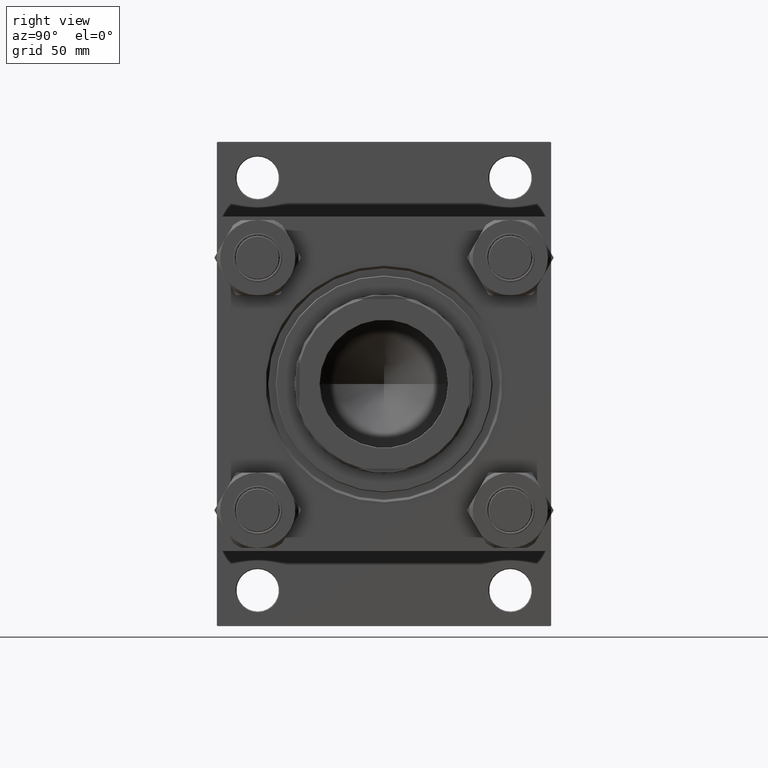
[diagram: clean part render]
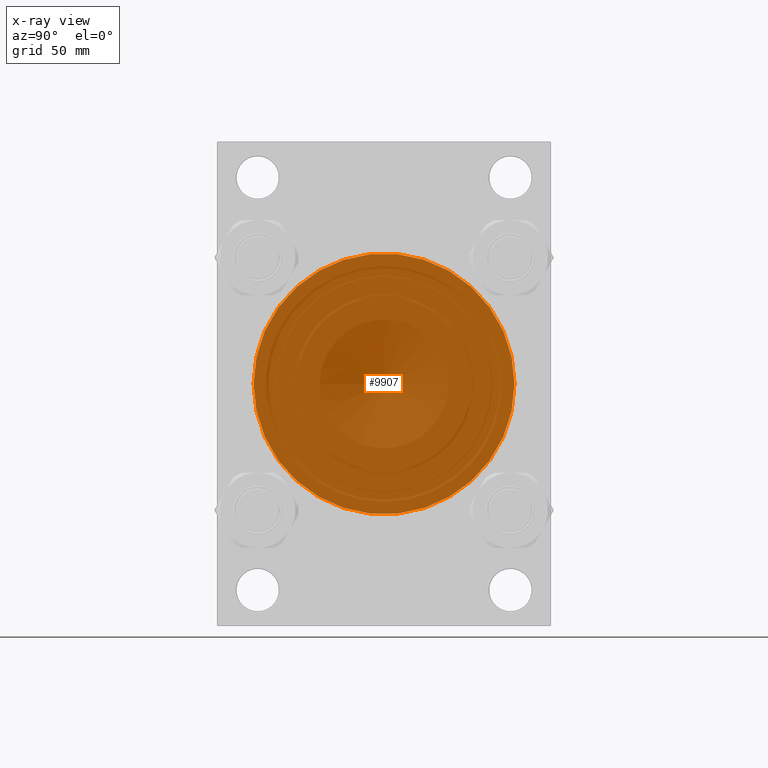
[diagram: x-ray — body ghosted, one internal face saturated and labeled with its STEP entity id]
A machine part, right view, then the same camera in x-ray: the body is ghosted and one INTERNAL B-rep face — a face not visible from any outside direction — is saturated and labeled: STEP entity #9907.
In plain terms, the highlighted planar face has unit normal (1, 0, 0).
Its self-contained STEP definition (entity closure, byte-faithful):
#3303 = VERTEX_POINT ( 'NONE', #20413 ) ;
#5720 = PLANE ( 'NONE',  #14505 ) ;
#7819 = AXIS2_PLACEMENT_3D ( 'NONE', #26116, #49619, #42187 ) ;
#8778 = FACE_OUTER_BOUND ( 'NONE', #29597, .T. ) ;
#9029 = DIRECTION ( 'NONE',  ( 0.000000000000000000, 0.000000000000000000, 1.000000000000000000 ) ) ;
#9907 = ADVANCED_FACE ( 'NONE', ( #8778 ), #5720, .F. ) ;
#9940 = CIRCLE ( 'NONE', #36847, 80.00000000000000000 ) ;
#14505 = AXIS2_PLACEMENT_3D ( 'NONE', #16682, #9029, #24855 ) ;
#16682 = CARTESIAN_POINT ( 'NONE',  ( 0.000000000000000000, 0.000000000000000000, 0.000000000000000000 ) ) ;
#19730 = EDGE_CURVE ( 'NONE', #36982, #3303, #47750, .T. ) ;
#20413 = CARTESIAN_POINT ( 'NONE',  ( -80.00000000000000000, 0.000000000000000000, 0.000000000000000000 ) ) ;
#24855 = DIRECTION ( 'NONE',  ( 1.000000000000000000, 0.000000000000000000, -0.000000000000000000 ) ) ;
#25775 = DIRECTION ( 'NONE',  ( 0.000000000000000000, 0.000000000000000000, 1.000000000000000000 ) ) ;
#26116 = CARTESIAN_POINT ( 'NONE',  ( 0.000000000000000000, 0.000000000000000000, 0.000000000000000000 ) ) ;
#29597 = EDGE_LOOP ( 'NONE', ( #40416, #42506 ) ) ;
#36847 = AXIS2_PLACEMENT_3D ( 'NONE', #45186, #25775, #41362 ) ;
#36982 = VERTEX_POINT ( 'NONE', #44079 ) ;
#40416 = ORIENTED_EDGE ( 'NONE', *, *, #43296, .F. ) ;
#41362 = DIRECTION ( 'NONE',  ( 1.000000000000000000, 0.000000000000000000, 0.000000000000000000 ) ) ;
#42187 = DIRECTION ( 'NONE',  ( 1.000000000000000000, 0.000000000000000000, 0.000000000000000000 ) ) ;
#42506 = ORIENTED_EDGE ( 'NONE', *, *, #19730, .F. ) ;
#43296 = EDGE_CURVE ( 'NONE', #3303, #36982, #9940, .T. ) ;
#44079 = CARTESIAN_POINT ( 'NONE',  ( 80.00000000000000000, 9.797174393178826052E-15, 0.000000000000000000 ) ) ;
#45186 = CARTESIAN_POINT ( 'NONE',  ( 0.000000000000000000, 0.000000000000000000, 0.000000000000000000 ) ) ;
#47750 = CIRCLE ( 'NONE', #7819, 80.00000000000000000 ) ;
#49619 = DIRECTION ( 'NONE',  ( 0.000000000000000000, 0.000000000000000000, 1.000000000000000000 ) ) ;